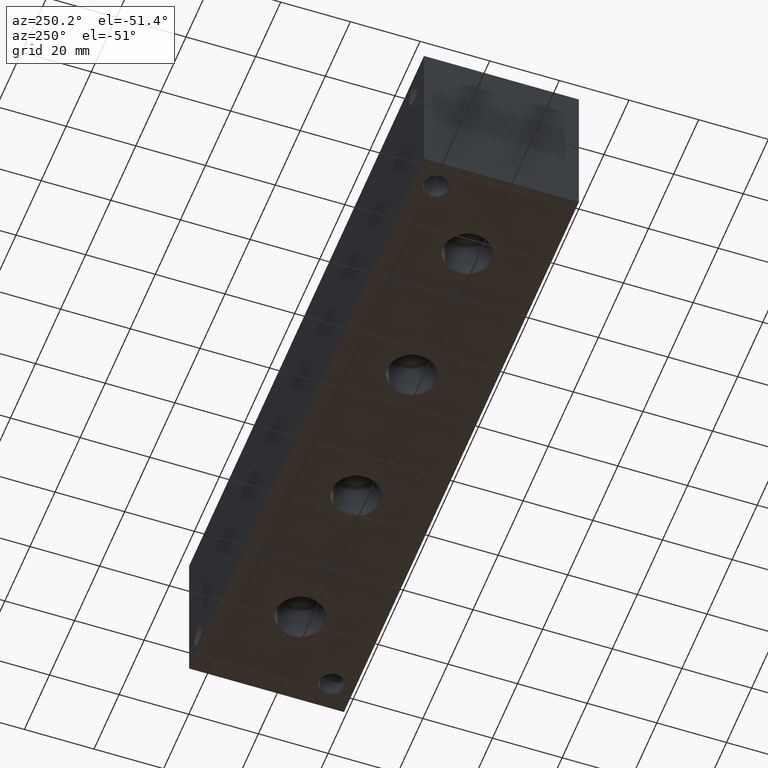
[diagram: clean part render]
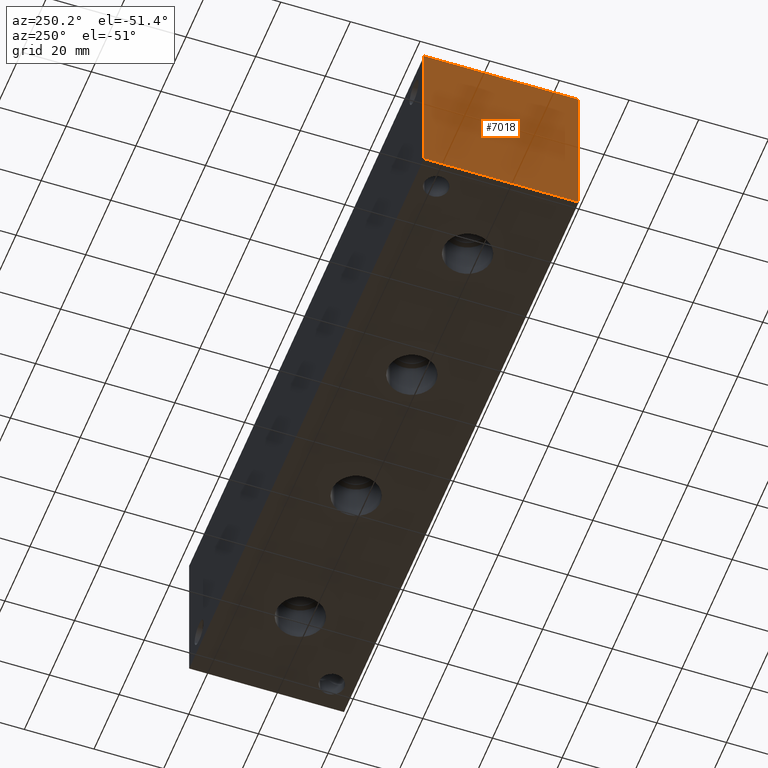
[diagram: same view with one face highlighted and labeled with its STEP entity id]
A machine part, auxiliary view. The second image highlights one B-rep face of the part: STEP entity #7018.
In plain terms, the highlighted planar face has unit normal (-1, 0, 0).
Its self-contained STEP definition (entity closure, byte-faithful):
#459=PLANE('',#7423);
#814=FACE_OUTER_BOUND('',#1215,.T.);
#1215=EDGE_LOOP('',(#6269,#6270,#6271,#6272));
#1520=LINE('',#10531,#2235);
#1942=LINE('',#11758,#2657);
#1943=LINE('',#11759,#2658);
#1944=LINE('',#11760,#2659);
#2235=VECTOR('',#7886,10.);
#2657=VECTOR('',#8910,10.);
#2658=VECTOR('',#8911,10.);
#2659=VECTOR('',#8912,10.);
#3069=VERTEX_POINT('',#10524);
#3072=VERTEX_POINT('',#10529);
#3447=VERTEX_POINT('',#11756);
#3448=VERTEX_POINT('',#11757);
#3856=EDGE_CURVE('',#3072,#3069,#1520,.T.);
#4398=EDGE_CURVE('',#3447,#3448,#1942,.T.);
#4399=EDGE_CURVE('',#3448,#3069,#1943,.T.);
#4400=EDGE_CURVE('',#3447,#3072,#1944,.T.);
#6269=ORIENTED_EDGE('',*,*,#4398,.T.);
#6270=ORIENTED_EDGE('',*,*,#4399,.T.);
#6271=ORIENTED_EDGE('',*,*,#3856,.F.);
#6272=ORIENTED_EDGE('',*,*,#4400,.F.);
#7018=ADVANCED_FACE('',(#814),#459,.T.);
#7423=AXIS2_PLACEMENT_3D('',#11755,#8908,#8909);
#7886=DIRECTION('',(0.,-1.,0.));
#8908=DIRECTION('center_axis',(-1.,0.,0.));
#8909=DIRECTION('ref_axis',(0.,-1.,0.));
#8910=DIRECTION('',(0.,-1.,0.));
#8911=DIRECTION('',(0.,0.,1.));
#8912=DIRECTION('',(0.,0.,1.));
#10524=CARTESIAN_POINT('',(0.,0.,44.45));
#10529=CARTESIAN_POINT('',(0.,44.45,44.45));
#10531=CARTESIAN_POINT('',(0.,44.45,44.45));
#11755=CARTESIAN_POINT('Origin',(0.,44.45,0.));
#11756=CARTESIAN_POINT('',(0.,44.45,0.));
#11757=CARTESIAN_POINT('',(0.,0.,0.));
#11758=CARTESIAN_POINT('',(0.,44.45,0.));
#11759=CARTESIAN_POINT('',(0.,0.,0.));
#11760=CARTESIAN_POINT('',(0.,44.45,0.));